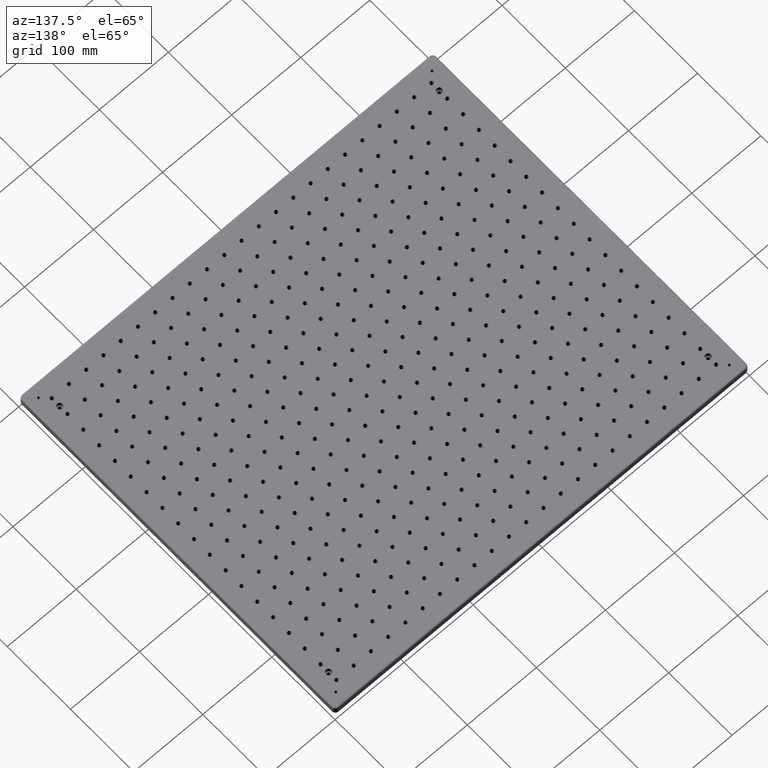
[diagram: clean part render]
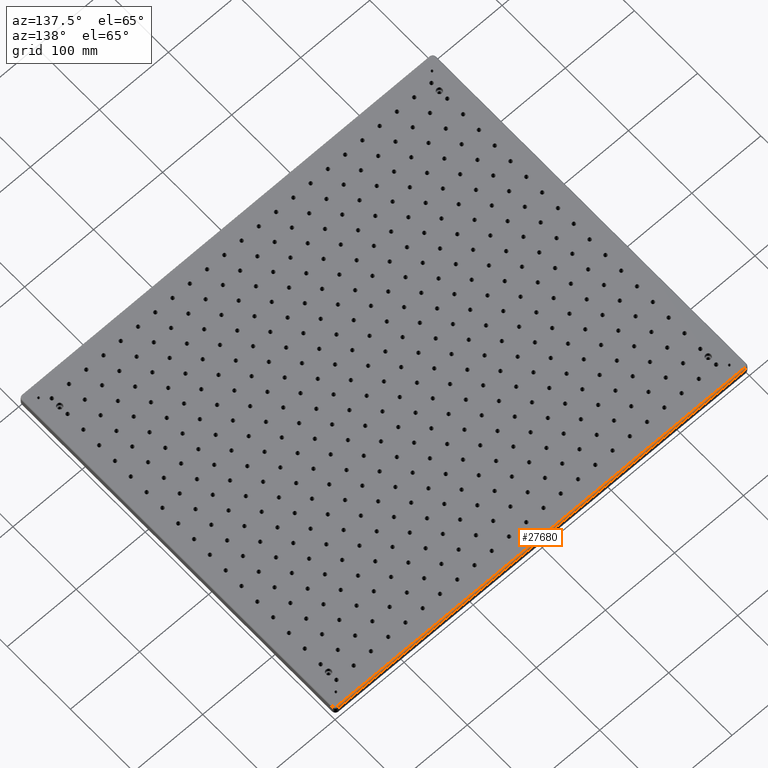
[diagram: same view with one face highlighted and labeled with its STEP entity id]
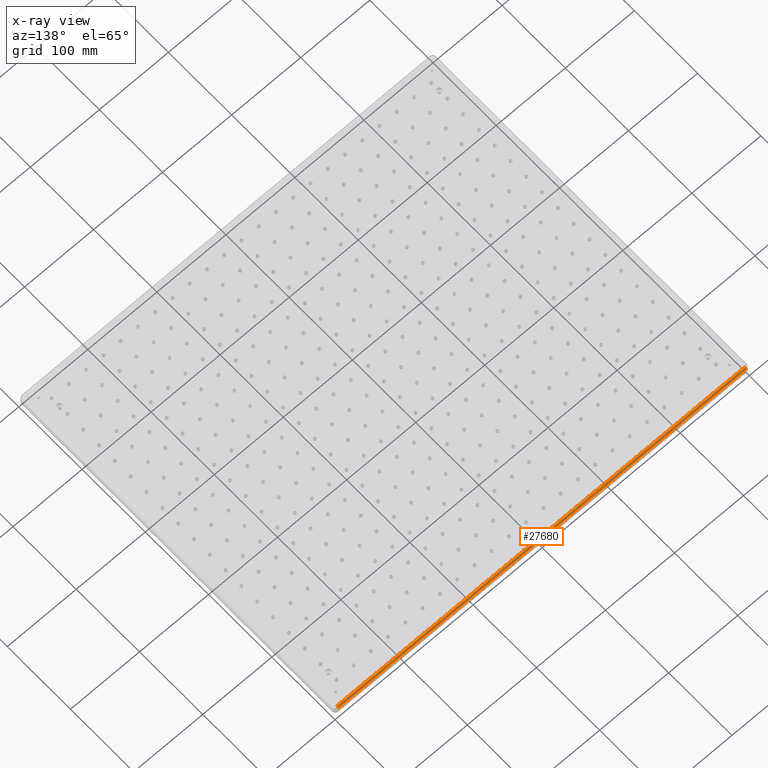
[diagram: x-ray of the same camera — body ghosted, the highlighted face saturated]
A machine part, auxiliary view. The second image highlights one B-rep face of the part: STEP entity #27680.
The next image is the same camera in x-ray: the body ghosted, the highlighted face saturated — about 0% of this face is hidden behind the body in this view.
In plain terms, the highlighted cylindrical surface (edge-blend (fillet) strip) has radius 2 mm, axis along (1, -0, 0).
Its self-contained STEP definition (entity closure, byte-faithful):
#337 = AXIS2_PLACEMENT_3D ( 'NONE', #4535, #18081, #2361 ) ;
#1295 = CARTESIAN_POINT ( 'NONE',  ( 4.999999999999998200, 498.0000000000000000, 0.0000000000000000000 ) ) ;
#1473 = AXIS2_PLACEMENT_3D ( 'NONE', #29579, #11432, #16249 ) ;
#2361 = DIRECTION ( 'NONE',  ( 0.0000000000000000000, 0.0000000000000000000, -1.000000000000000000 ) ) ;
#2615 = CARTESIAN_POINT ( 'NONE',  ( 595.0000000000000000, 500.0000000000000000, -2.000000000000000000 ) ) ;
#3949 = DIRECTION ( 'NONE',  ( -1.000000000000000000, 0.0000000000000000000, 0.0000000000000000000 ) ) ;
#4535 = CARTESIAN_POINT ( 'NONE',  ( 0.0000000000000000000, 498.0000000000000000, -2.000000000000000000 ) ) ;
#6168 = LINE ( 'NONE', #2615, #33208 ) ;
#6841 = VERTEX_POINT ( 'NONE', #16722 ) ;
#7748 = VECTOR ( 'NONE', #3949, 1000.000000000000000 ) ;
#7829 = CIRCLE ( 'NONE', #1473, 2.000000000000000000 ) ;
#7874 = EDGE_LOOP ( 'NONE', ( #23992, #19898, #25520, #7886 ) ) ;
#7886 = ORIENTED_EDGE ( 'NONE', *, *, #14143, .F. ) ;
#8209 = CIRCLE ( 'NONE', #29635, 2.000000000000000000 ) ;
#10557 = DIRECTION ( 'NONE',  ( 1.000000000000000000, -0.0000000000000000000, 0.0000000000000000000 ) ) ;
#11059 = EDGE_CURVE ( 'NONE', #32075, #25490, #7829, .T. ) ;
#11432 = DIRECTION ( 'NONE',  ( 1.000000000000000000, 0.0000000000000000000, 0.0000000000000000000 ) ) ;
#11887 = CARTESIAN_POINT ( 'NONE',  ( 4.999999999999998200, 498.0000000000000000, 0.0000000000000000000 ) ) ;
#14143 = EDGE_CURVE ( 'NONE', #32075, #22945, #6168, .T. ) ;
#15037 = EDGE_CURVE ( 'NONE', #22945, #6841, #8209, .T. ) ;
#15286 = CYLINDRICAL_SURFACE ( 'NONE', #337, 2.000000000000000000 ) ;
#16105 = FACE_OUTER_BOUND ( 'NONE', #7874, .T. ) ;
#16249 = DIRECTION ( 'NONE',  ( 0.0000000000000000000, 0.0000000000000000000, -1.000000000000000000 ) ) ;
#16448 = CARTESIAN_POINT ( 'NONE',  ( 595.0000000000000000, 500.0000000000000000, -2.000000000000000000 ) ) ;
#16722 = CARTESIAN_POINT ( 'NONE',  ( 595.0000000000000000, 498.0000000000000000, 0.0000000000000000000 ) ) ;
#17335 = EDGE_CURVE ( 'NONE', #6841, #25490, #21669, .T. ) ;
#18081 = DIRECTION ( 'NONE',  ( 1.000000000000000000, -0.0000000000000000000, 0.0000000000000000000 ) ) ;
#19898 = ORIENTED_EDGE ( 'NONE', *, *, #17335, .F. ) ;
#19973 = DIRECTION ( 'NONE',  ( 0.0000000000000000000, 0.0000000000000000000, -1.000000000000000000 ) ) ;
#21669 = LINE ( 'NONE', #11887, #7748 ) ;
#22945 = VERTEX_POINT ( 'NONE', #16448 ) ;
#23288 = CARTESIAN_POINT ( 'NONE',  ( 4.999999999999998200, 500.0000000000000000, -2.000000000000000000 ) ) ;
#23992 = ORIENTED_EDGE ( 'NONE', *, *, #11059, .T. ) ;
#25072 = DIRECTION ( 'NONE',  ( 1.000000000000000000, 0.0000000000000000000, 0.0000000000000000000 ) ) ;
#25490 = VERTEX_POINT ( 'NONE', #1295 ) ;
#25520 = ORIENTED_EDGE ( 'NONE', *, *, #15037, .F. ) ;
#27680 = ADVANCED_FACE ( 'NONE', ( #16105 ), #15286, .T. ) ;
#29579 = CARTESIAN_POINT ( 'NONE',  ( 4.999999999999998200, 498.0000000000000000, -2.000000000000000000 ) ) ;
#29635 = AXIS2_PLACEMENT_3D ( 'NONE', #30482, #25072, #19973 ) ;
#30482 = CARTESIAN_POINT ( 'NONE',  ( 595.0000000000000000, 498.0000000000000000, -2.000000000000000000 ) ) ;
#32075 = VERTEX_POINT ( 'NONE', #23288 ) ;
#33208 = VECTOR ( 'NONE', #10557, 1000.000000000000000 ) ;